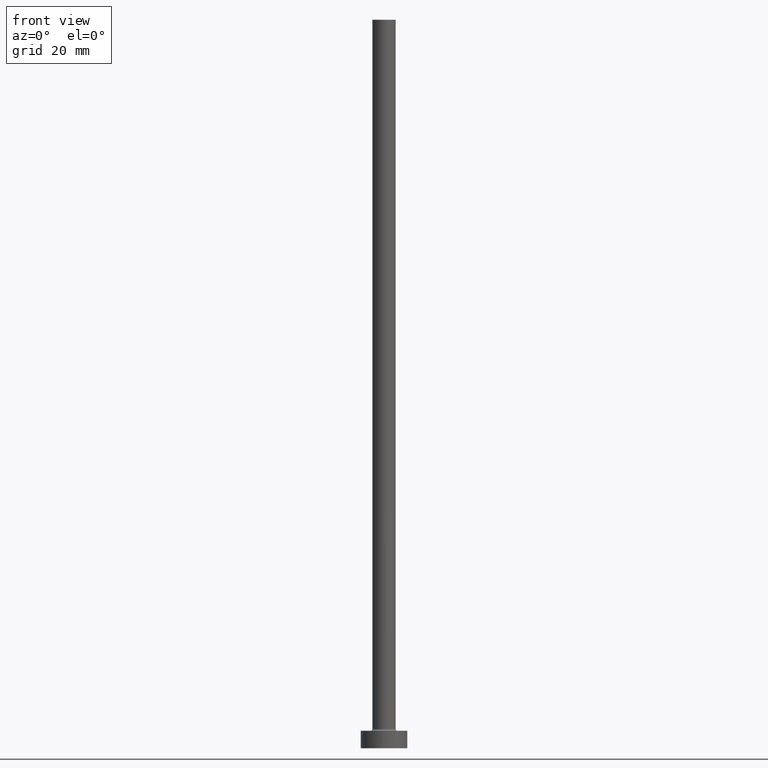
[diagram: clean part render]
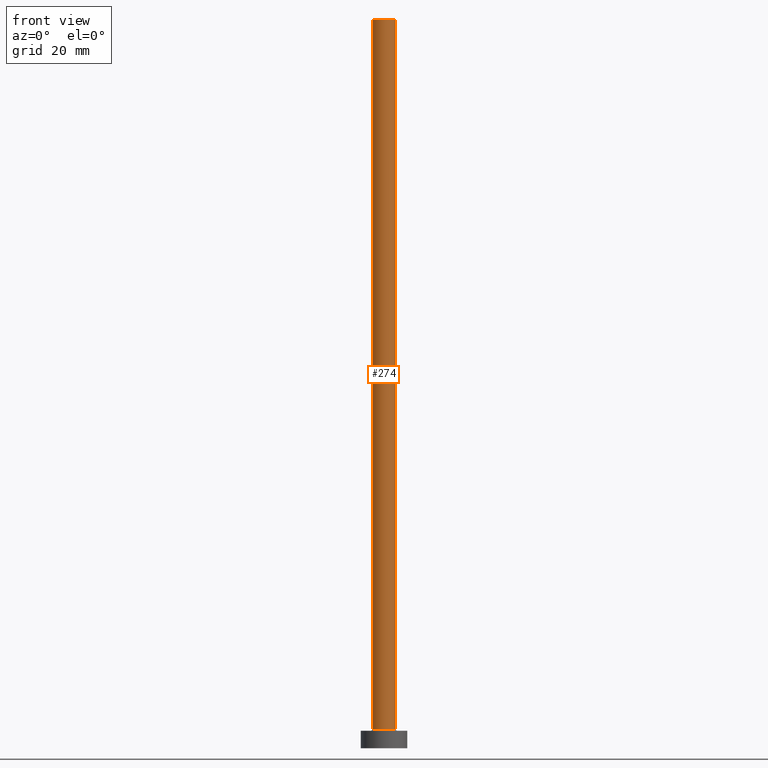
[diagram: same view with one face highlighted and labeled with its STEP entity id]
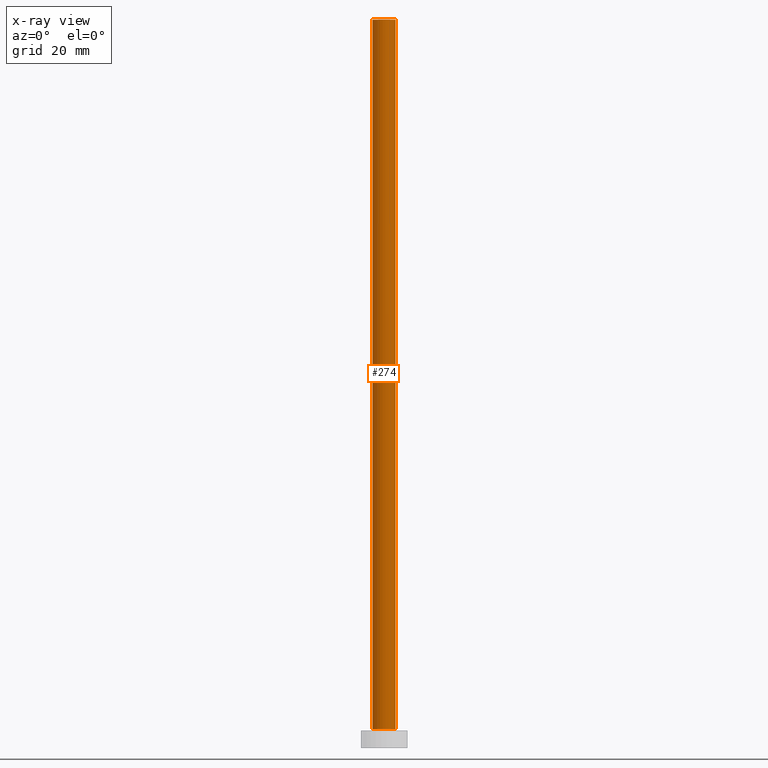
[diagram: x-ray of the same camera — body ghosted, the highlighted face saturated]
A machine part, front view. The second image highlights one B-rep face of the part: STEP entity #274.
The next image is the same camera in x-ray: the body ghosted, the highlighted face saturated — about 0% of this face is hidden behind the body in this view.
In plain terms, the highlighted cylindrical surface (edge-blend (fillet) strip) has radius 2 mm, axis along (-0, -0, -1).
Its self-contained STEP definition (entity closure, byte-faithful):
#10 = VERTEX_POINT ( 'NONE', #453 ) ;
#16 = EDGE_CURVE ( 'NONE', #295, #112, #86, .T. ) ;
#17 = EDGE_LOOP ( 'NONE', ( #208, #269, #273, #400 ) ) ;
#31 = DIRECTION ( 'NONE',  ( -0.000000000000000000, -0.000000000000000000, -1.000000000000000000 ) ) ;
#38 = CARTESIAN_POINT ( 'NONE',  ( -2.000000000000000000, 0.000000000000000000, 3.299999999999997158 ) ) ;
#46 = VERTEX_POINT ( 'NONE', #230 ) ;
#50 = CARTESIAN_POINT ( 'NONE',  ( 0.000000000000000000, 0.000000000000000000, 3.299999999999997158 ) ) ;
#52 = CARTESIAN_POINT ( 'NONE',  ( -2.000000000000000000, 0.000000000000000000, 125.0000000000000000 ) ) ;
#64 = EDGE_CURVE ( 'NONE', #295, #10, #446, .T. ) ;
#86 = LINE ( 'NONE', #370, #361 ) ;
#100 = DIRECTION ( 'NONE',  ( 0.000000000000000000, 0.000000000000000000, 1.000000000000000000 ) ) ;
#108 = DIRECTION ( 'NONE',  ( 1.000000000000000000, 0.000000000000000000, 0.000000000000000000 ) ) ;
#112 = VERTEX_POINT ( 'NONE', #38 ) ;
#135 = AXIS2_PLACEMENT_3D ( 'NONE', #218, #141, #365 ) ;
#141 = DIRECTION ( 'NONE',  ( -0.000000000000000000, -0.000000000000000000, -1.000000000000000000 ) ) ;
#143 = DIRECTION ( 'NONE',  ( 0.000000000000000000, 0.000000000000000000, 1.000000000000000000 ) ) ;
#160 = CARTESIAN_POINT ( 'NONE',  ( 0.000000000000000000, 0.000000000000000000, 125.0000000000000000 ) ) ;
#162 = DIRECTION ( 'NONE',  ( 1.000000000000000000, 0.000000000000000000, 0.000000000000000000 ) ) ;
#164 = AXIS2_PLACEMENT_3D ( 'NONE', #50, #143, #108 ) ;
#177 = FACE_OUTER_BOUND ( 'NONE', #17, .T. ) ;
#208 = ORIENTED_EDGE ( 'NONE', *, *, #405, .F. ) ;
#218 = CARTESIAN_POINT ( 'NONE',  ( 0.000000000000000000, 0.000000000000000000, 125.0000000000000000 ) ) ;
#230 = CARTESIAN_POINT ( 'NONE',  ( 2.000000000000000000, 2.449293598294705921E-16, 3.299999999999997158 ) ) ;
#256 = CYLINDRICAL_SURFACE ( 'NONE', #135, 2.000000000000000000 ) ;
#267 = EDGE_CURVE ( 'NONE', #112, #46, #392, .T. ) ;
#269 = ORIENTED_EDGE ( 'NONE', *, *, #64, .F. ) ;
#273 = ORIENTED_EDGE ( 'NONE', *, *, #16, .T. ) ;
#274 = ADVANCED_FACE ( 'NONE', ( #177 ), #256, .T. ) ;
#293 = CARTESIAN_POINT ( 'NONE',  ( 2.000000000000000000, 2.449293598294705921E-16, 125.0000000000000000 ) ) ;
#295 = VERTEX_POINT ( 'NONE', #52 ) ;
#325 = LINE ( 'NONE', #293, #426 ) ;
#361 = VECTOR ( 'NONE', #31, 1000.000000000000000 ) ;
#365 = DIRECTION ( 'NONE',  ( -1.000000000000000000, 0.000000000000000000, 0.000000000000000000 ) ) ;
#370 = CARTESIAN_POINT ( 'NONE',  ( -2.000000000000000000, 0.000000000000000000, 125.0000000000000000 ) ) ;
#392 = CIRCLE ( 'NONE', #164, 2.000000000000000000 ) ;
#400 = ORIENTED_EDGE ( 'NONE', *, *, #267, .T. ) ;
#404 = AXIS2_PLACEMENT_3D ( 'NONE', #160, #100, #162 ) ;
#405 = EDGE_CURVE ( 'NONE', #10, #46, #325, .T. ) ;
#426 = VECTOR ( 'NONE', #435, 1000.000000000000000 ) ;
#435 = DIRECTION ( 'NONE',  ( -0.000000000000000000, -0.000000000000000000, -1.000000000000000000 ) ) ;
#446 = CIRCLE ( 'NONE', #404, 2.000000000000000000 ) ;
#453 = CARTESIAN_POINT ( 'NONE',  ( 2.000000000000000000, 2.449293598294705921E-16, 125.0000000000000000 ) ) ;